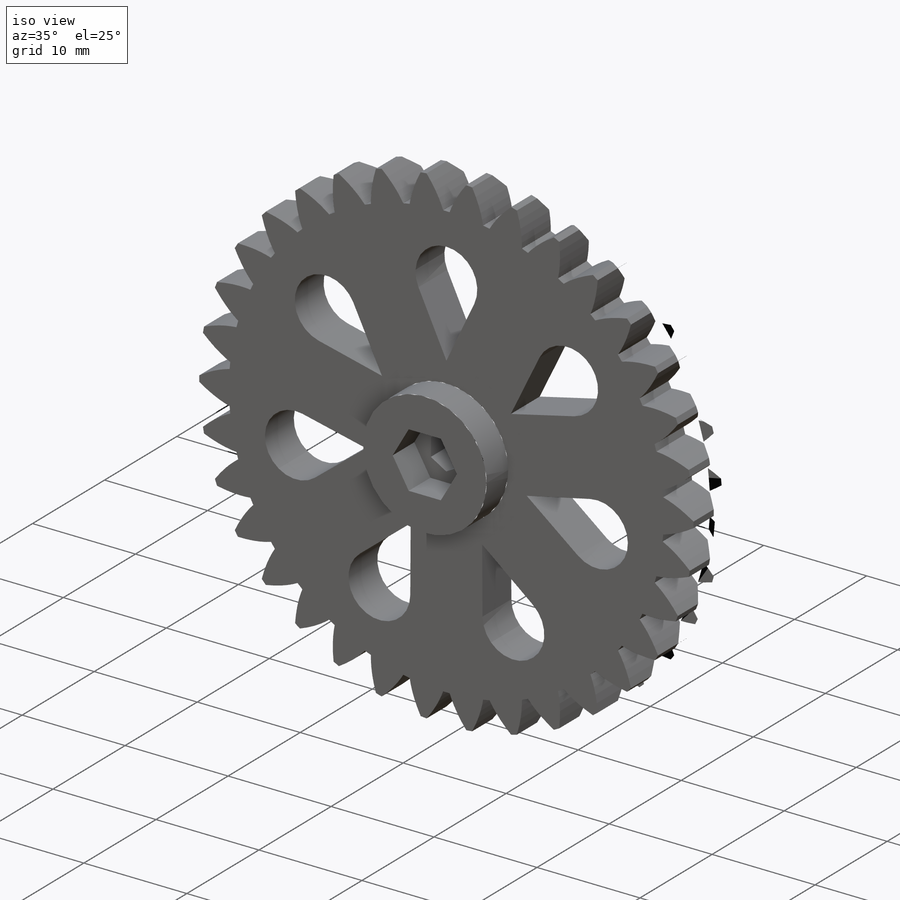
[diagram: iso view]
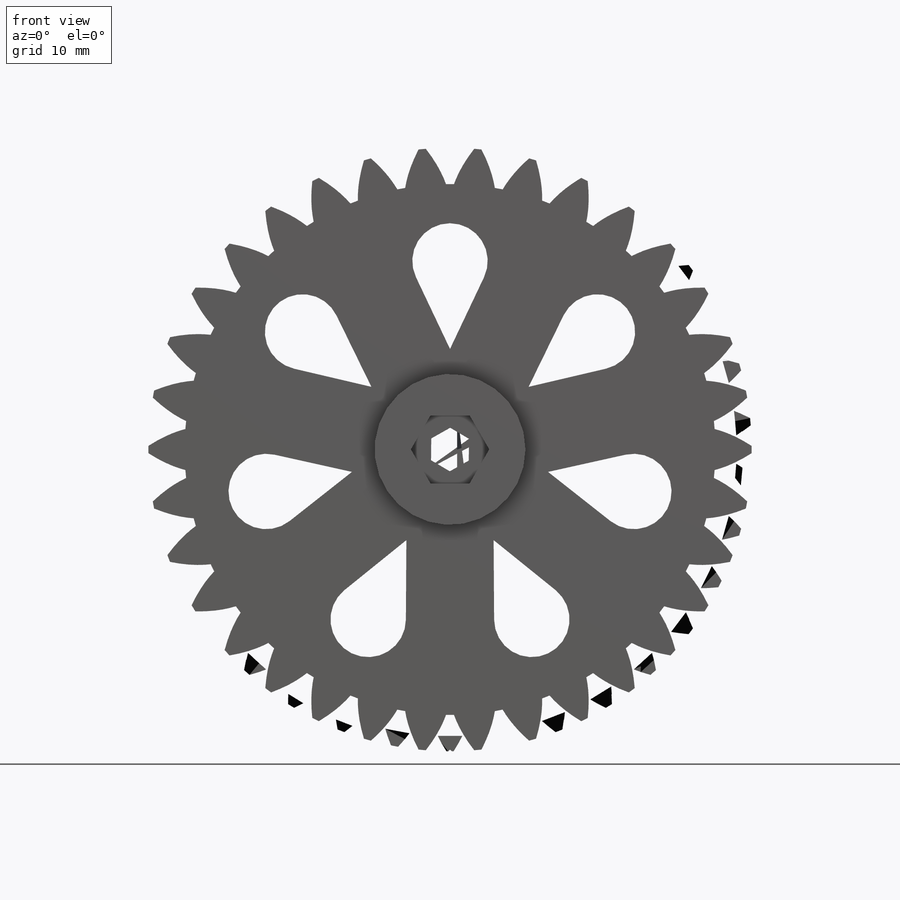
[diagram: front view]
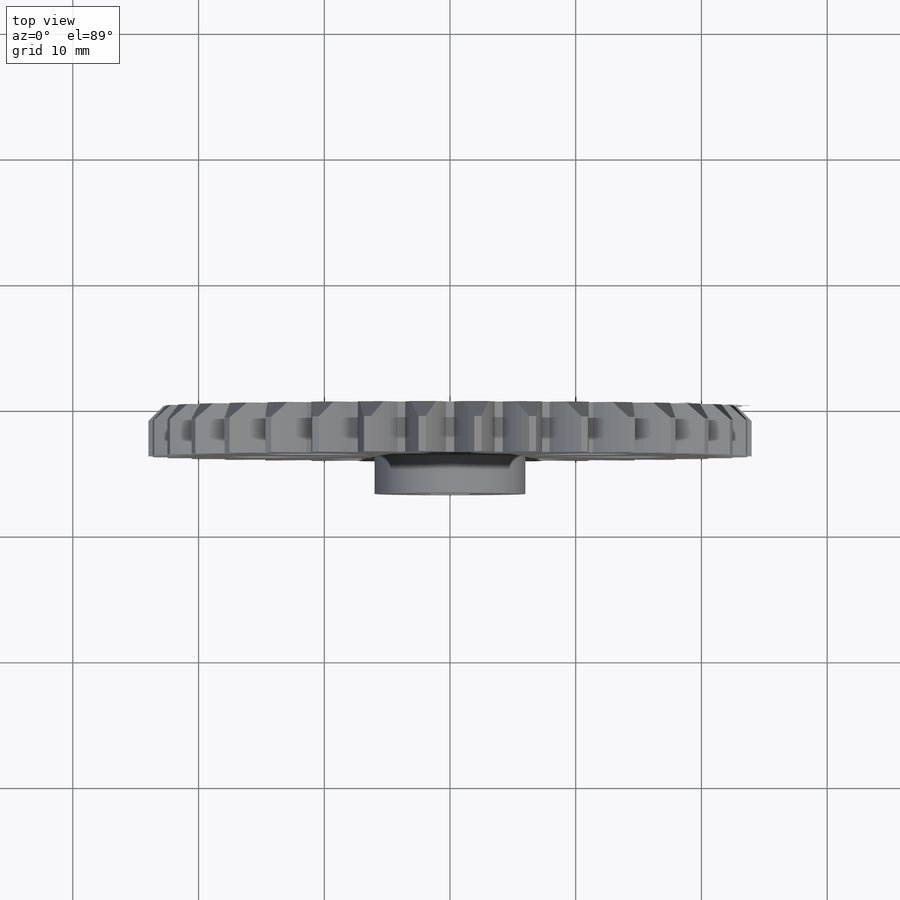
[diagram: top view]
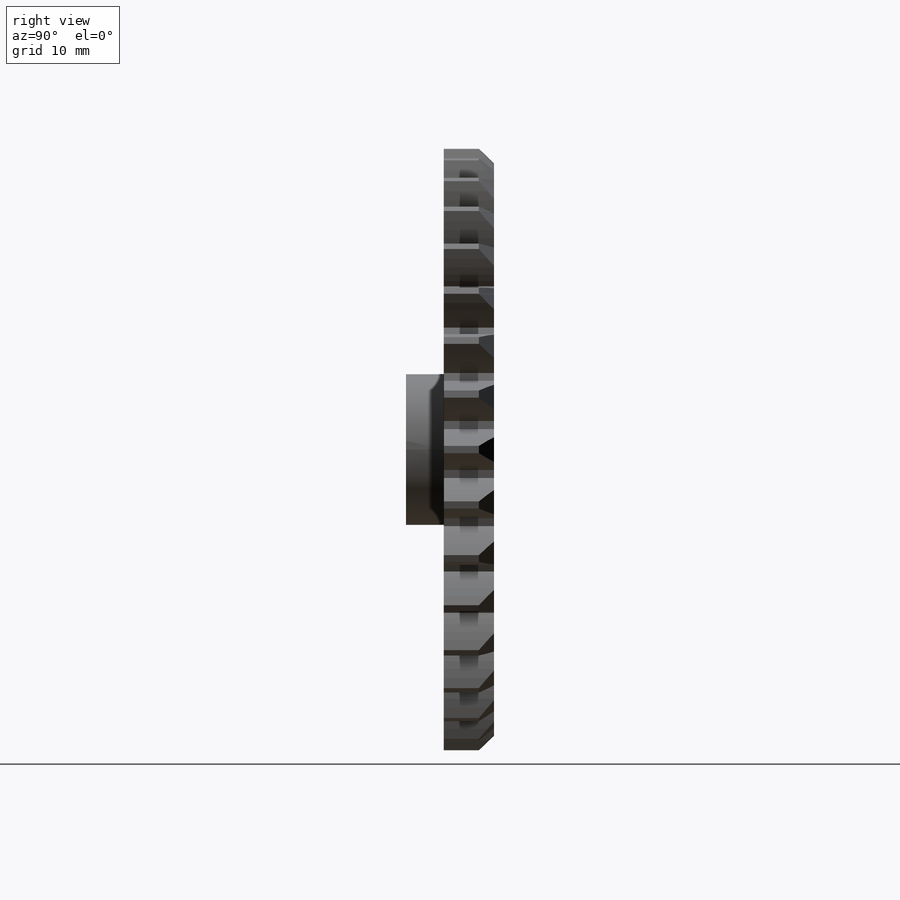
[diagram: right view]
SOLIDWORKS PART (.sldprt)
format: sldprt  version: not decoded by parser v0  size: 1,069,056 bytes
history: native  units: mm
features: sketch x6, cut_extrude x3, extrude x2, material x1, pattern_circular x1, cut_revolve x1 (+13 scaffold rows collapsed)
feature tree (27):
  scaffold x13  (default folders/planes/origin — collapsed)
  material  "Custom Plastic"
  sketch  "Model"
  extrude  "Boss-Extrude1"  Depth=4mm
  sketch  "Sketch3"  dims[D1=12.0mm]
  extrude  "Boss-Extrude2"  Depth=3mm
  sketch  "Sketch2"  dims[D1=3.0mm]
  cut_extrude  "Cut-Extrude1"  [1 undecoded]
  sketch  "Sketch4"  dims[D1=5.4mm]
  cut_extrude  "Cut-Extrude2"  Depth=3mm
  sketch  "Sketch5"  dims[D3=3.0mm D1=8.0mm D2=15.0mm]
  cut_extrude  "Cut-Extrude3"  [1 undecoded]
  pattern_circular  "CirPattern1"  Count=7 Angle=360deg
  sketch  "Sketch6"  dims[c1.D1=~3.247699mm c2.D1=45.0deg c2.D2=1.2mm c2.D3=24.0mm]
  cut_revolve  "Cut-Revolve1"  Angle=360deg
decode coverage: 10 of 13 modeling features carry decoded parameters
note: ~ marks probable driven/reference dimensions
note: 2 parameter values undecoded
note: suppression state not decoded; provenance and decode notes live in map.json
